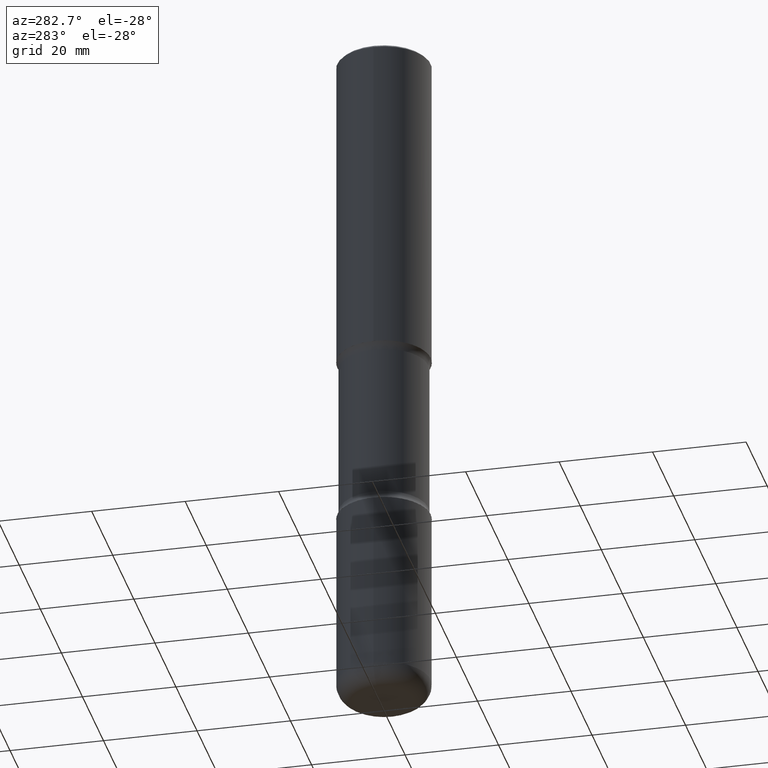
[diagram: clean part render]
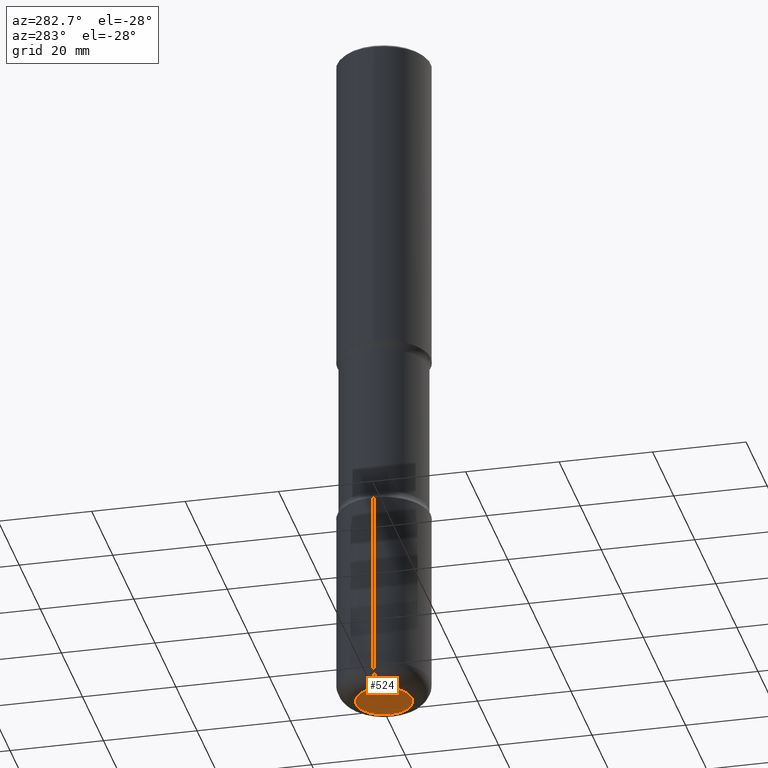
[diagram: same view with one face highlighted and labeled with its STEP entity id]
A machine part, auxiliary view. The second image highlights one B-rep face of the part: STEP entity #524.
In plain terms, the highlighted planar face has unit normal (0, -0, -1).
Its self-contained STEP definition (entity closure, byte-faithful):
#25 = ORIENTED_EDGE ( 'NONE', *, *, #123, .F. ) ;
#51 = DIRECTION ( 'NONE',  ( -1.000000000000000000, 6.982962677686265922E-15, -4.876176775795935793E-29 ) ) ;
#52 = CARTESIAN_POINT ( 'NONE',  ( -0.2362000000000005762, -1.810613454482786010E-14, -5.905499999999999972 ) ) ;
#88 = EDGE_LOOP ( 'NONE', ( #25, #452 ) ) ;
#115 = CIRCLE ( 'NONE', #440, 0.2362000000000005762 ) ;
#120 = DIRECTION ( 'NONE',  ( -2.445468806185136597E-29, 3.491481338843145583E-15, 1.000000000000000000 ) ) ;
#123 = EDGE_CURVE ( 'NONE', #216, #320, #115, .T. ) ;
#166 = PLANE ( 'NONE',  #363 ) ;
#199 = DIRECTION ( 'NONE',  ( -2.445468806185136597E-29, 3.491481338843145583E-15, 1.000000000000000000 ) ) ;
#216 = VERTEX_POINT ( 'NONE', #465 ) ;
#284 = EDGE_CURVE ( 'NONE', #320, #216, #321, .T. ) ;
#320 = VERTEX_POINT ( 'NONE', #52 ) ;
#321 = CIRCLE ( 'NONE', #384, 0.2362000000000005762 ) ;
#340 = DIRECTION ( 'NONE',  ( 1.000000000000000000, -6.982962677686272233E-15, 0.000000000000000000 ) ) ;
#363 = AXIS2_PLACEMENT_3D ( 'NONE', #456, #432, #51 ) ;
#366 = FACE_OUTER_BOUND ( 'NONE', #88, .T. ) ;
#377 = CARTESIAN_POINT ( 'NONE',  ( 1.444171603492632270E-28, -2.061894304653819197E-14, -5.905499999999999972 ) ) ;
#384 = AXIS2_PLACEMENT_3D ( 'NONE', #377, #199, #340 ) ;
#432 = DIRECTION ( 'NONE',  ( 2.438088387897960049E-29, -3.491481338843145188E-15, -1.000000000000000000 ) ) ;
#440 = AXIS2_PLACEMENT_3D ( 'NONE', #505, #120, #510 ) ;
#452 = ORIENTED_EDGE ( 'NONE', *, *, #284, .F. ) ;
#456 = CARTESIAN_POINT ( 'NONE',  ( -4.636291820505606800E-29, -4.793973614828971225E-14, -5.905499999999998195 ) ) ;
#465 = CARTESIAN_POINT ( 'NONE',  ( 0.2362000000000005762, -2.226831883100769480E-14, -5.905499999999999972 ) ) ;
#505 = CARTESIAN_POINT ( 'NONE',  ( 1.444171603492632270E-28, -2.061894304653819197E-14, -5.905499999999999972 ) ) ;
#510 = DIRECTION ( 'NONE',  ( 1.000000000000000000, -6.982962677686272233E-15, 0.000000000000000000 ) ) ;
#524 = ADVANCED_FACE ( 'NONE', ( #366 ), #166, .T. ) ;